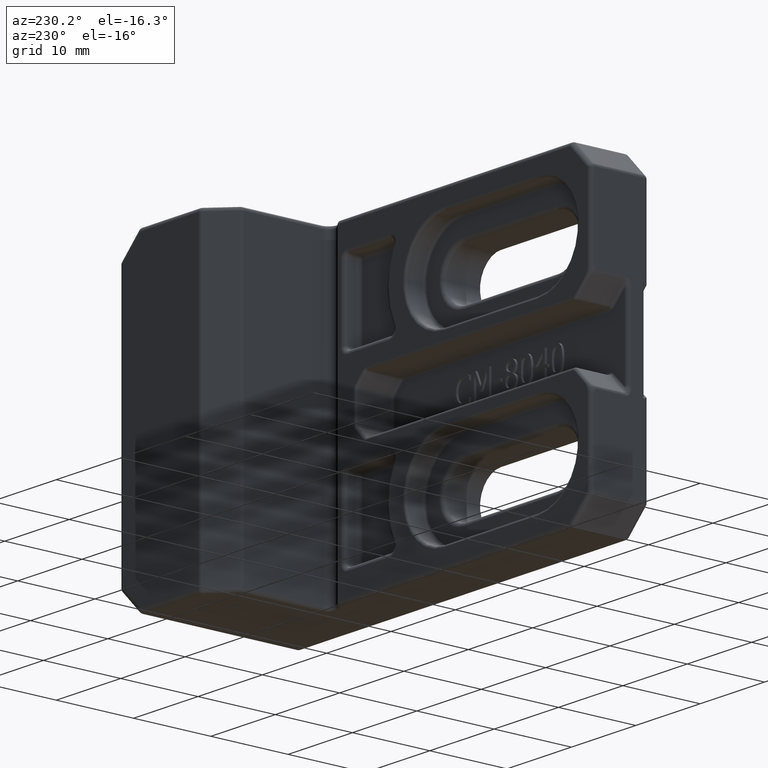
[diagram: clean part render]
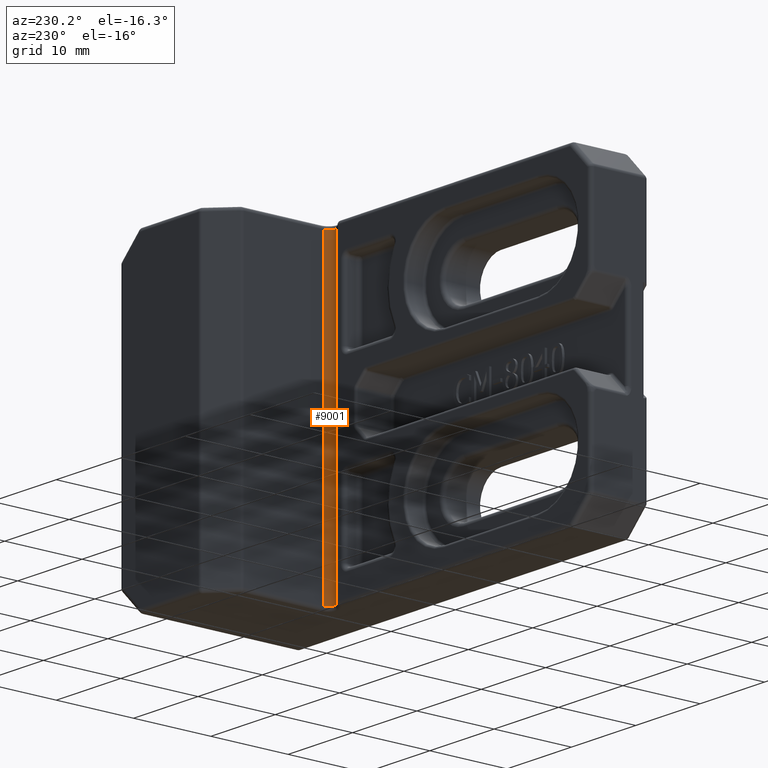
[diagram: same view with one face highlighted and labeled with its STEP entity id]
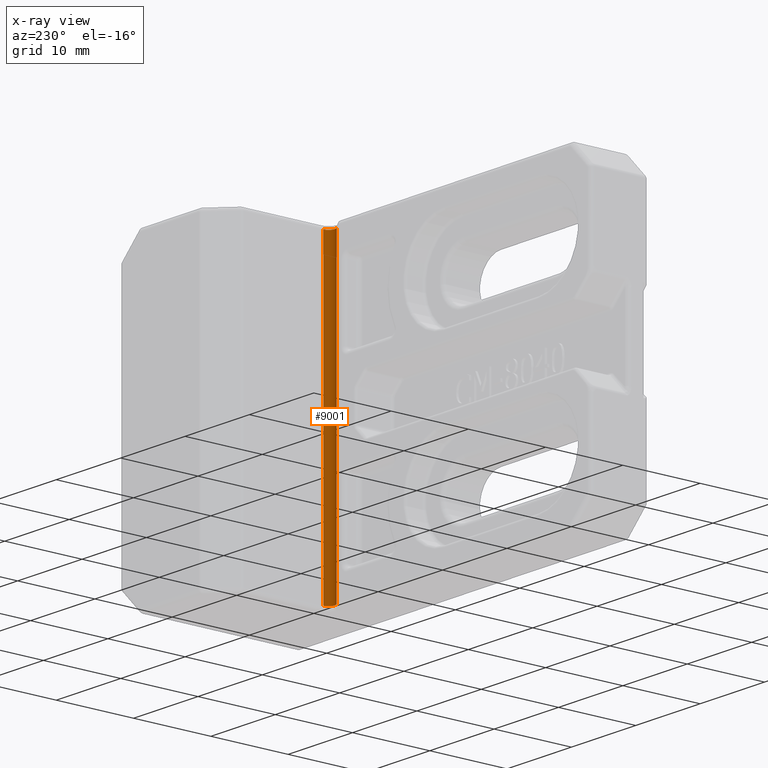
[diagram: x-ray of the same camera — body ghosted, the highlighted face saturated]
A machine part, auxiliary view. The second image highlights one B-rep face of the part: STEP entity #9001.
The next image is the same camera in x-ray: the body ghosted, the highlighted face saturated — about 0% of this face is hidden behind the body in this view.
In plain terms, the highlighted cylindrical surface (edge-blend (fillet) strip) has radius 0.8 mm, axis along (0, 0, 1).
Its self-contained STEP definition (entity closure, byte-faithful):
#892=LINE('',#16663,#1606);
#893=LINE('',#16665,#1607);
#1606=VECTOR('',#12001,39.);
#1607=VECTOR('',#12004,39.);
#1929=CYLINDRICAL_SURFACE('',#9826,0.8);
#2420=FACE_OUTER_BOUND('',#2995,.T.);
#2995=EDGE_LOOP('',(#7838,#7839,#7840,#7841));
#3414=CIRCLE('',#9597,0.8);
#3450=CIRCLE('',#9660,0.8);
#4026=VERTEX_POINT('',#14827);
#4028=VERTEX_POINT('',#14833);
#4060=VERTEX_POINT('',#14956);
#4062=VERTEX_POINT('',#14961);
#5014=EDGE_CURVE('',#4026,#4028,#3414,.T.);
#5080=EDGE_CURVE('',#4062,#4060,#3450,.T.);
#5533=EDGE_CURVE('',#4026,#4060,#892,.T.);
#5534=EDGE_CURVE('',#4062,#4028,#893,.T.);
#7838=ORIENTED_EDGE('',*,*,#5014,.F.);
#7839=ORIENTED_EDGE('',*,*,#5533,.T.);
#7840=ORIENTED_EDGE('',*,*,#5080,.F.);
#7841=ORIENTED_EDGE('',*,*,#5534,.T.);
#9001=ADVANCED_FACE('',(#2420),#1929,.F.);
#9597=AXIS2_PLACEMENT_3D('',#14837,#11195,#11196);
#9660=AXIS2_PLACEMENT_3D('',#14963,#11351,#11352);
#9826=AXIS2_PLACEMENT_3D('',#16664,#12002,#12003);
#11195=DIRECTION('center_axis',(0.,0.,1.));
#11196=DIRECTION('ref_axis',(0.462910049886277,-0.886405260427918,0.));
#11351=DIRECTION('center_axis',(0.,0.,-1.));
#11352=DIRECTION('ref_axis',(0.462910049886277,-0.886405260427918,0.));
#12001=DIRECTION('',(0.,0.,1.));
#12002=DIRECTION('center_axis',(0.,0.,1.));
#12003=DIRECTION('ref_axis',(1.,0.,0.));
#12004=DIRECTION('',(0.,0.,-1.));
#14827=CARTESIAN_POINT('',(40.2428571428571,6.84347855468136,-19.5));
#14833=CARTESIAN_POINT('',(41.5,7.5,-19.5));
#14837=CARTESIAN_POINT('Origin',(40.7,7.5,-19.5));
#14956=CARTESIAN_POINT('',(40.2428571428571,6.84347855468136,19.5));
#14961=CARTESIAN_POINT('',(41.5,7.5,19.5));
#14963=CARTESIAN_POINT('Origin',(40.7,7.5,19.5));
#16663=CARTESIAN_POINT('',(40.2428571428571,6.84347855468136,-20.));
#16664=CARTESIAN_POINT('Origin',(40.7,7.5,-20.));
#16665=CARTESIAN_POINT('',(41.5,7.5,0.));